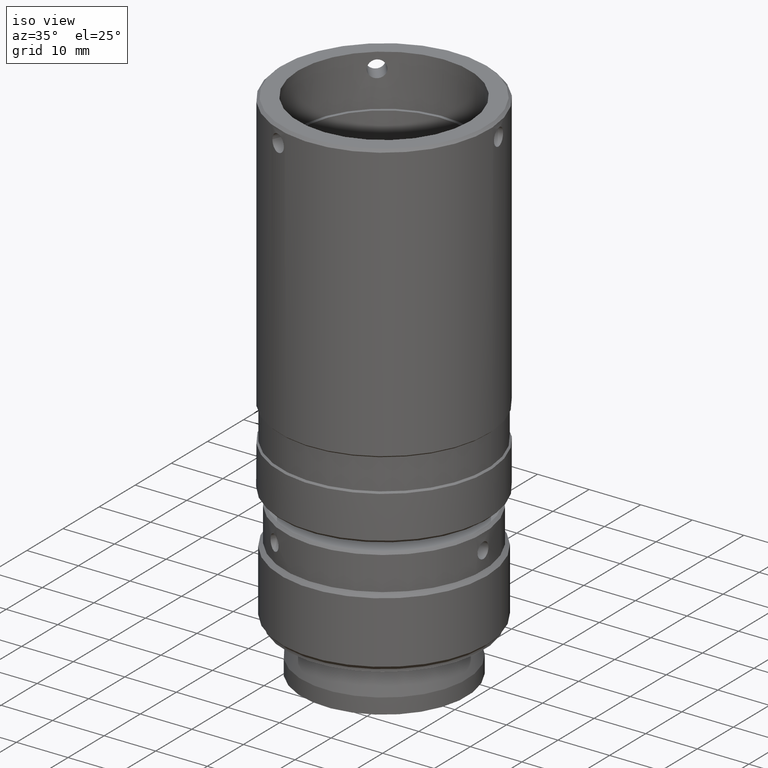
[diagram: clean part render]
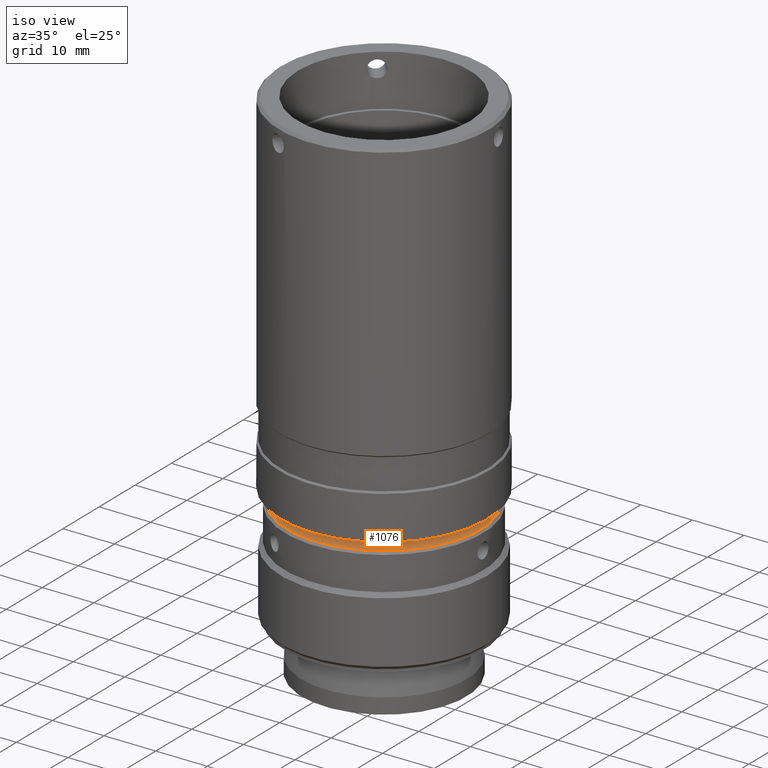
[diagram: same view with one face highlighted and labeled with its STEP entity id]
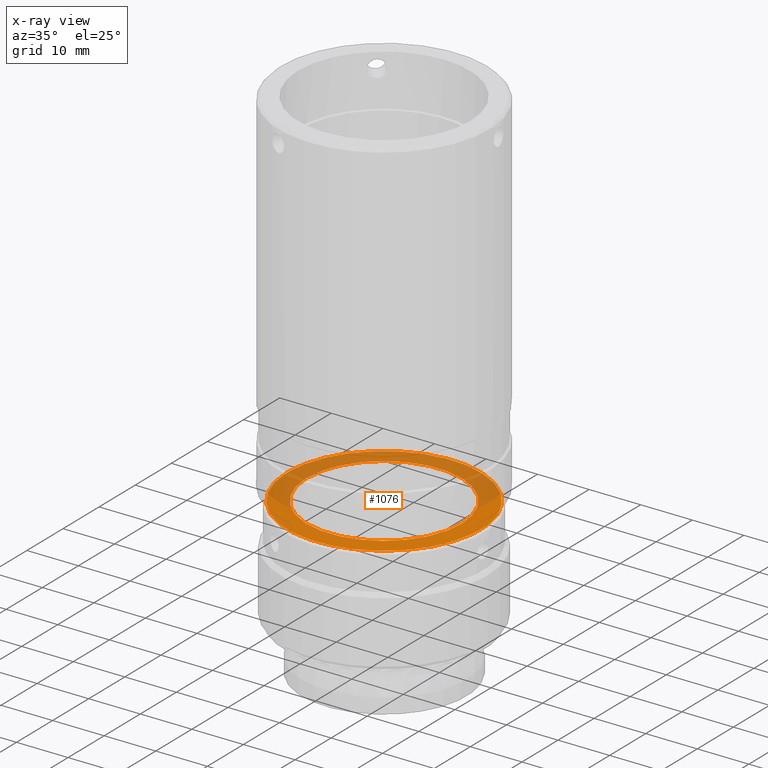
[diagram: x-ray of the same camera — body ghosted, the highlighted face saturated]
A machine part, iso view. The second image highlights one B-rep face of the part: STEP entity #1076.
The next image is the same camera in x-ray: the body ghosted, the highlighted face saturated — about 51% of this face is hidden behind the body in this view.
In plain terms, the highlighted planar face has unit normal (-0, -0, 1).
Its self-contained STEP definition (entity closure, byte-faithful):
#19 = VERTEX_POINT ( 'NONE', #550 ) ;
#23 = CARTESIAN_POINT ( 'NONE',  ( -23.88631158386647968, 2.012163911859719434, 54.99999835367975010 ) ) ;
#91 = DIRECTION ( 'NONE',  ( 0.000000000000000000, 0.000000000000000000, -1.000000000000000000 ) ) ;
#118 = EDGE_LOOP ( 'NONE', ( #1279 ) ) ;
#129 = CARTESIAN_POINT ( 'NONE',  ( 14.11368685656933053, 2.012163911859719434, 54.99999835367975720 ) ) ;
#267 = EDGE_CURVE ( 'NONE', #19, #19, #1677, .T. ) ;
#323 = AXIS2_PLACEMENT_3D ( 'NONE', #869, #91, #362 ) ;
#362 = DIRECTION ( 'NONE',  ( 1.000000000000000000, 0.000000000000000000, 0.000000000000000000 ) ) ;
#550 = CARTESIAN_POINT ( 'NONE',  ( 9.863686856569325201, 2.012163911859719434, 54.99999835372159396 ) ) ;
#582 = AXIS2_PLACEMENT_3D ( 'NONE', #129, #895, #1177 ) ;
#601 = ORIENTED_EDGE ( 'NONE', *, *, #1611, .T. ) ;
#732 = CARTESIAN_POINT ( 'NONE',  ( -5.136313143430673911, 2.012163911859719434, 54.99999835367975010 ) ) ;
#781 = FACE_OUTER_BOUND ( 'NONE', #1251, .T. ) ;
#866 = DIRECTION ( 'NONE',  ( -1.000000000000000000, 0.000000000000000000, 0.000000000000000000 ) ) ;
#869 = CARTESIAN_POINT ( 'NONE',  ( -5.136313143430670358, 2.012163911859719434, 54.99999835372159396 ) ) ;
#895 = DIRECTION ( 'NONE',  ( -1.224646799147353207E-16, -0.000000000000000000, 1.000000000000000000 ) ) ;
#942 = VERTEX_POINT ( 'NONE', #23 ) ;
#1066 = AXIS2_PLACEMENT_3D ( 'NONE', #732, #1422, #866 ) ;
#1076 = ADVANCED_FACE ( 'NONE', ( #1551, #781 ), #1314, .T. ) ;
#1097 = CIRCLE ( 'NONE', #1066, 18.74999844043580666 ) ;
#1177 = DIRECTION ( 'NONE',  ( 1.000000000000000000, 0.000000000000000000, 1.224646799147353207E-16 ) ) ;
#1251 = EDGE_LOOP ( 'NONE', ( #601 ) ) ;
#1279 = ORIENTED_EDGE ( 'NONE', *, *, #267, .T. ) ;
#1314 = PLANE ( 'NONE',  #582 ) ;
#1422 = DIRECTION ( 'NONE',  ( -1.182766006347822862E-16, -2.816109538923388115E-18, 1.000000000000000000 ) ) ;
#1551 = FACE_BOUND ( 'NONE', #118, .T. ) ;
#1611 = EDGE_CURVE ( 'NONE', #942, #942, #1097, .T. ) ;
#1677 = CIRCLE ( 'NONE', #323, 14.99999999999999645 ) ;